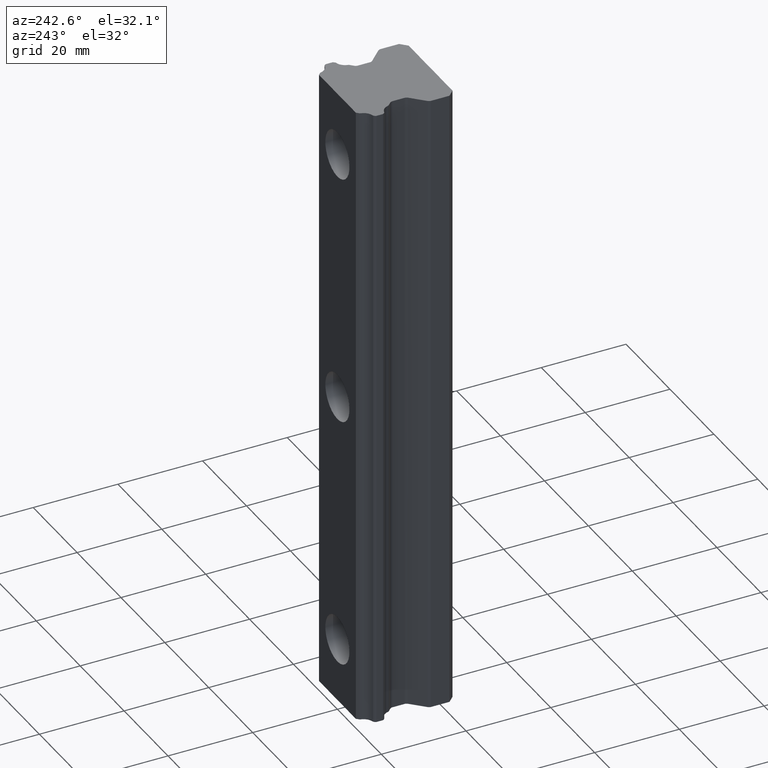
[diagram: clean part render]
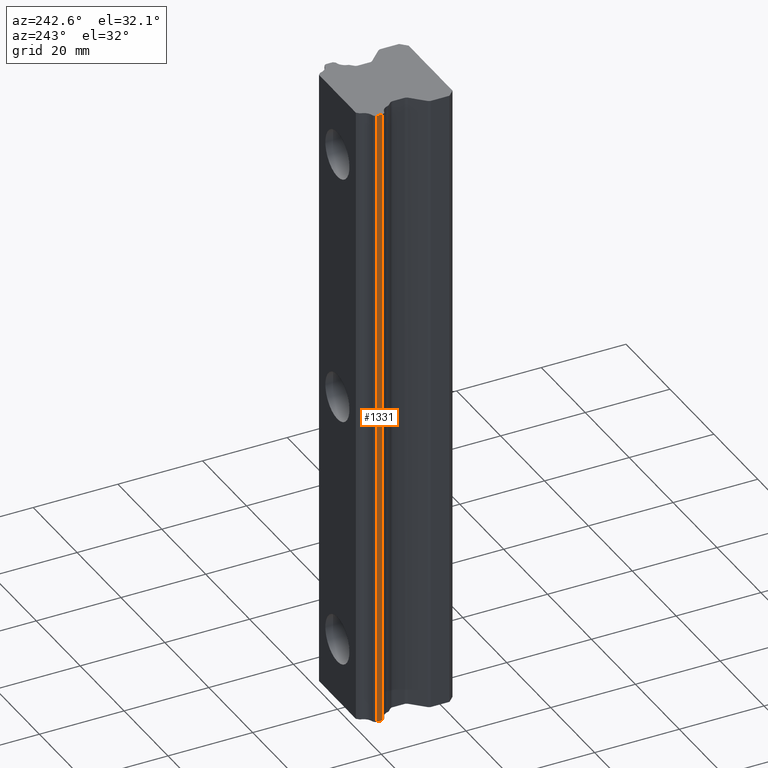
[diagram: same view with one face highlighted and labeled with its STEP entity id]
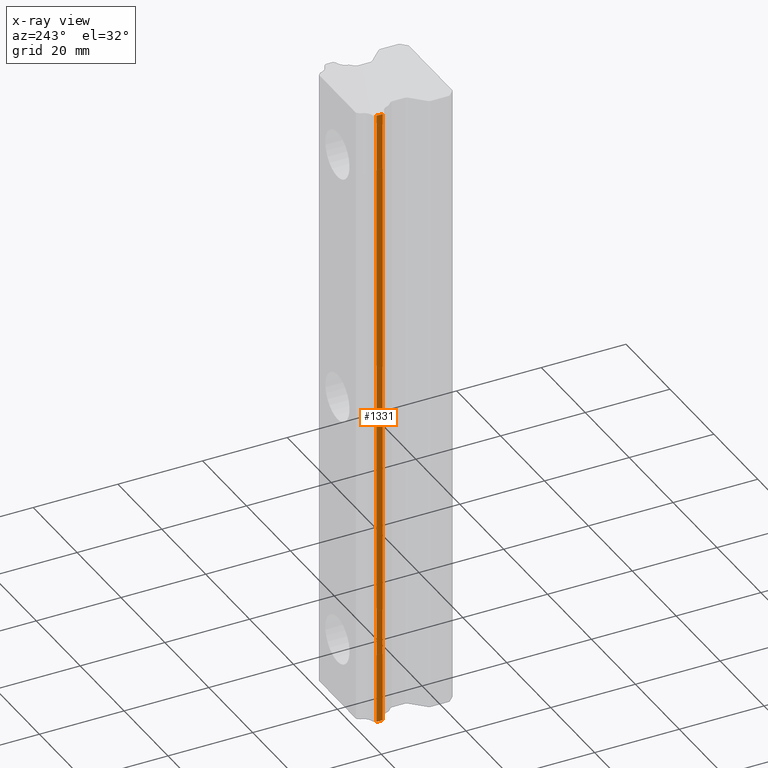
[diagram: x-ray of the same camera — body ghosted, the highlighted face saturated]
A machine part, auxiliary view. The second image highlights one B-rep face of the part: STEP entity #1331.
The next image is the same camera in x-ray: the body ghosted, the highlighted face saturated — about 0% of this face is hidden behind the body in this view.
In plain terms, the highlighted planar face has unit normal (-1, 0, 0).
Its self-contained STEP definition (entity closure, byte-faithful):
#134 = VERTEX_POINT ( 'NONE', #660 ) ;
#135 = VERTEX_POINT ( 'NONE', #662 ) ;
#137 = ORIENTED_EDGE ( 'NONE', *, *, #138, .T. ) ;
#138 = EDGE_CURVE ( 'NONE', #134, #135, #723, .T. ) ;
#139 = ORIENTED_EDGE ( 'NONE', *, *, #145, .F. ) ;
#140 = VERTEX_POINT ( 'NONE', #719 ) ;
#141 = VERTEX_POINT ( 'NONE', #718 ) ;
#142 = ORIENTED_EDGE ( 'NONE', *, *, #143, .F. ) ;
#143 = EDGE_CURVE ( 'NONE', #134, #141, #717, .T. ) ;
#145 = EDGE_CURVE ( 'NONE', #140, #135, #709, .T. ) ;
#161 = ORIENTED_EDGE ( 'NONE', *, *, #1369, .T. ) ;
#660 = CARTESIAN_POINT ( 'NONE',  ( -11.50000000000000000, -3.298408781186918900, -75.00000000000000000 ) ) ;
#662 = CARTESIAN_POINT ( 'NONE',  ( -11.50000000000022900, -4.712756218813918700, -75.00000000000000000 ) ) ;
#706 = DIRECTION ( 'NONE',  ( 0.0000000000000000000, 0.0000000000000000000, -1.000000000000000000 ) ) ;
#707 = VECTOR ( 'NONE', #706, 1000.000000000000000 ) ;
#708 = CARTESIAN_POINT ( 'NONE',  ( -11.50000000000000000, -4.712756218814000400, -75.00000000000000000 ) ) ;
#709 = LINE ( 'NONE', #708, #707 ) ;
#714 = DIRECTION ( 'NONE',  ( 0.0000000000000000000, 0.0000000000000000000, 1.000000000000000000 ) ) ;
#715 = VECTOR ( 'NONE', #714, 1000.000000000000000 ) ;
#716 = CARTESIAN_POINT ( 'NONE',  ( -11.50000000000000000, -3.298408781187000200, -75.00000000000000000 ) ) ;
#717 = LINE ( 'NONE', #716, #715 ) ;
#718 = CARTESIAN_POINT ( 'NONE',  ( -11.50000000000000000, -3.298408781186918900, 75.00000000000000000 ) ) ;
#719 = CARTESIAN_POINT ( 'NONE',  ( -11.50000000000022900, -4.712756218813918700, 75.00000000000000000 ) ) ;
#720 = DIRECTION ( 'NONE',  ( -3.252923639304999900E-013, -1.000000000000000000, 0.0000000000000000000 ) ) ;
#721 = VECTOR ( 'NONE', #720, 1000.000000000000000 ) ;
#722 = CARTESIAN_POINT ( 'NONE',  ( -11.50000000000000000, -3.298408781187000200, -75.00000000000000000 ) ) ;
#723 = LINE ( 'NONE', #722, #721 ) ;
#1331 = ADVANCED_FACE ( 'NONE', ( #1631 ), #1630, .T. ) ;
#1338 = EDGE_LOOP ( 'NONE', ( #142, #137, #139, #161 ) ) ;
#1369 = EDGE_CURVE ( 'NONE', #140, #141, #1680, .T. ) ;
#1626 = DIRECTION ( 'NONE',  ( -3.252923639304999900E-013, -1.000000000000000000, 0.0000000000000000000 ) ) ;
#1627 = DIRECTION ( 'NONE',  ( -1.000000000000000000, 3.252923639304999900E-013, 0.0000000000000000000 ) ) ;
#1628 = CARTESIAN_POINT ( 'NONE',  ( -11.50000000000000000, -3.298408781187000200, -75.00000000000000000 ) ) ;
#1629 = AXIS2_PLACEMENT_3D ( 'NONE', #1628, #1627, #1626 ) ;
#1630 = PLANE ( 'NONE',  #1629 ) ;
#1631 = FACE_OUTER_BOUND ( 'NONE', #1338, .T. ) ;
#1677 = DIRECTION ( 'NONE',  ( 3.252923639304999900E-013, 1.000000000000000000, 0.0000000000000000000 ) ) ;
#1678 = VECTOR ( 'NONE', #1677, 1000.000000000000000 ) ;
#1679 = CARTESIAN_POINT ( 'NONE',  ( -11.50000000000000000, -3.298408781187000200, 75.00000000000000000 ) ) ;
#1680 = LINE ( 'NONE', #1679, #1678 ) ;